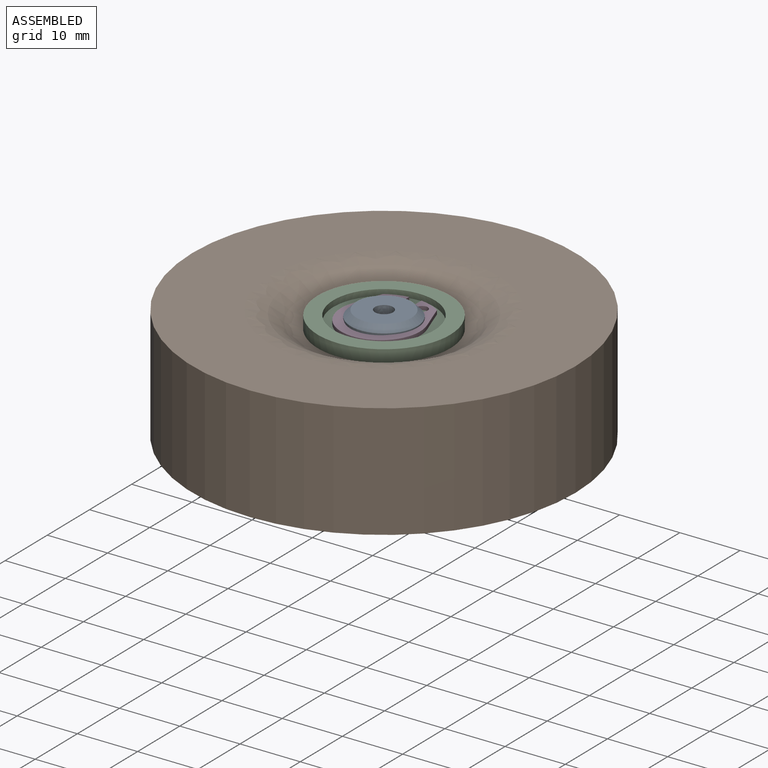
[diagram: assembled view]
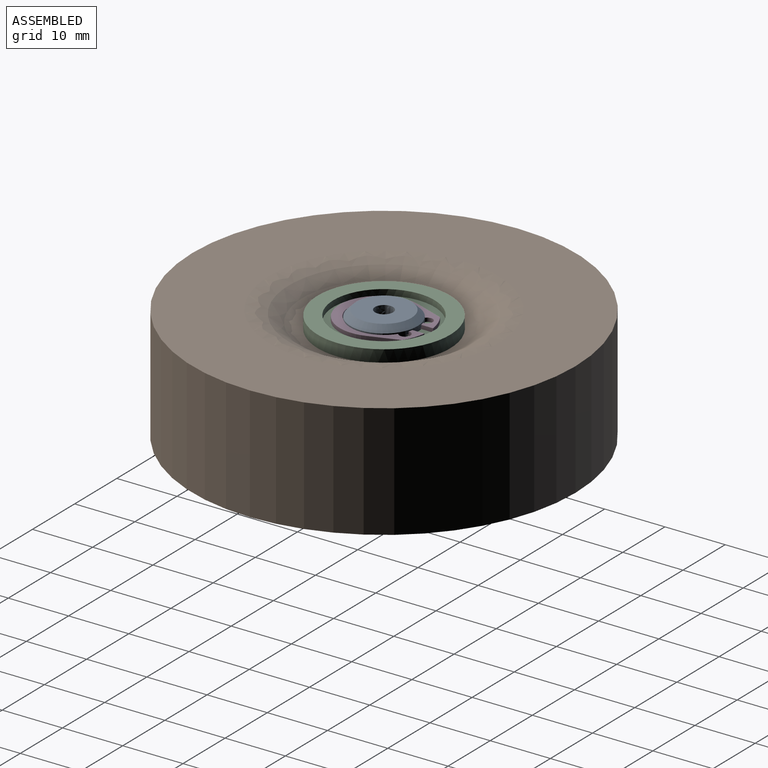
[diagram: assembled view, second angle]
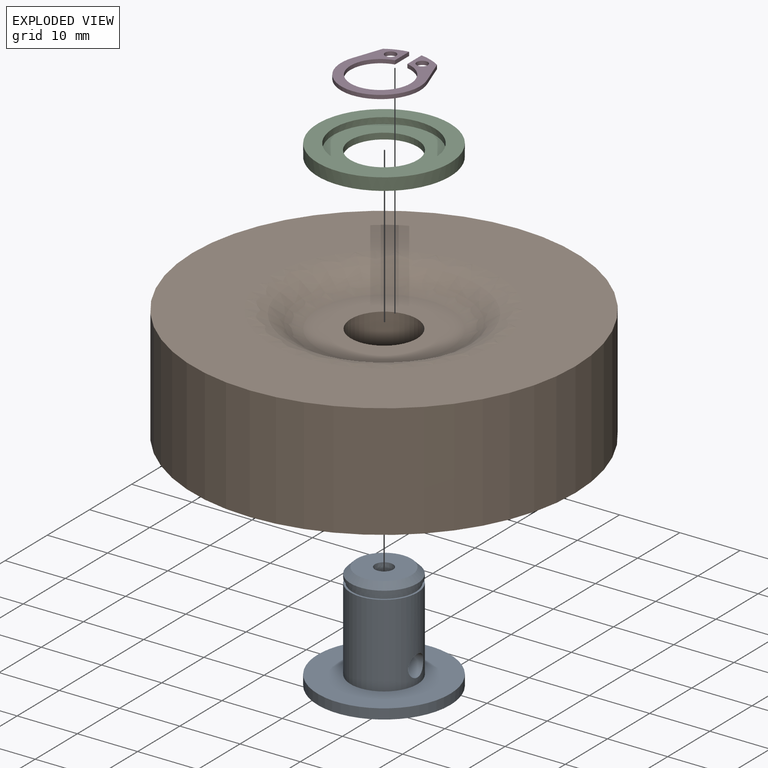
[diagram: exploded view]
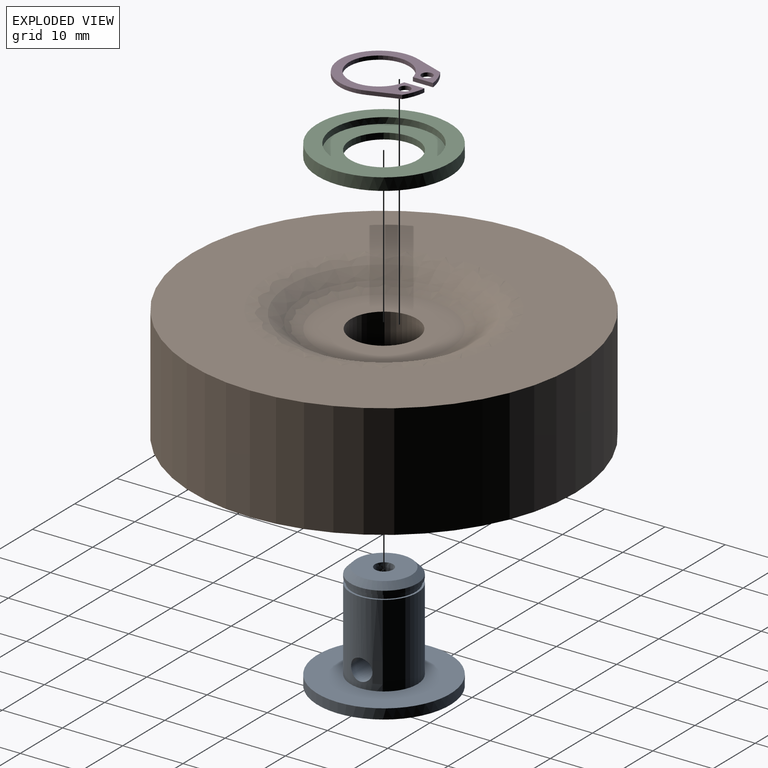
[diagram: exploded view, second angle]
ASSEMBLY  parts=4 mates=3
PART A: 17 faces, bbox 22x22x19.3 mm
  f0: revolved ~11.11x11.11mm, area 44.5mm2, adj f1,f2
  f1: revolved ~11.11x11.11mm, area 21.3mm2, adj f0,f3
  f2: plane 9.13x9.13mm, normal (0,0,1), area 58.4mm2, adj f0,f4,f7
  f3: plane 11.11x11.11mm, normal (0,0,-1), area 11mm2, adj f1,f8
  f4: revolved ~11.55x3mm, area 54.4mm2, adj f2,f7,f10
  f5: revolved ~4.2x3mm, area 19.8mm2, adj f6,f9,f10
  f6: revolved ~4.2x3mm, area 19.8mm2, adj f5,f9,f10
  f7: revolved ~11.55x3mm, area 54.4mm2, adj f2,f4,f10
  f8: revolved ~10.46x10.46mm, area 25.1mm2, adj f3,f11
  f9: plane 6.2x6.2mm, normal (0,0,-1), area 23.1mm2, adj f5,f6,f12
  f10: revolved ~11.11x3.56mm, area 108.2mm2, adj f4,f5,f6,f7,f13
  f11: plane 11.11x11.11mm, normal (0,0,1), area 11mm2, adj f8,f13
  f12: revolved ~6.2x6.2mm, area 29.7mm2, adj f9,f14
  f13: revolved ~13.74x11.11mm, area -159.3mm2, adj f10,f11,f15
  f14: plane 22x22mm, normal (0,0,-1), area 349.9mm2, adj f12,f16
  f15: plane 22x22mm, normal (0,0,1), area 283mm2, adj f13,f16
  f16: revolved ~22x22mm, area 115.8mm2, adj f14,f15
PART B: 8 faces, bbox 63.6x63.6x19.1 mm
  f0: revolved ~38x38mm, area 813.6mm2, adj f1,f7
  f1: plane 63.6x63.6mm, normal (0,0,-1), area 2042.8mm2, adj f0,f2
  f2: cylinder r=31.8mm len=63.6mm, axis (0,0,1), area 3796.3mm2, adj f1,f3
  f3: plane 63.6x63.6mm, normal (0,0,1), area 2042.8mm2, adj f2,f4
  f4: revolved ~38x38mm, area 813.6mm2, adj f3,f5
  f5: plane 22x22mm, normal (0,0,1), area 285.1mm2, adj f4,f6
  f6: cylinder r=5.5mm len=13.25mm, axis (0,0,1), area 457.9mm2, adj f5,f7
  f7: plane 22x22mm, normal (0,0,-1), area 285.1mm2, adj f0,f6
PART C: 6 faces, bbox 22x22x2 mm
  f0: plane 22x22mm, normal (0,0,-1), area 282.2mm2, adj f1,f2
  f1: revolved ~11.16x11.16mm, area 35.6mm2, adj f0,f3
  f2: revolved ~22x22mm, area 140.4mm2, adj f0,f4
  f3: plane 16.8x16.8mm, normal (0,0,1), area 123.8mm2, adj f1,f5
  f4: plane 22x22mm, normal (0,0,1), area 158.3mm2, adj f2,f5
  f5: revolved ~16.8x16.8mm, area 53.6mm2, adj f3,f4
PART D: 12 faces, bbox 13.1x14.8x0.6 mm
  f0: plane 3.35x0.64mm, normal (1,0,0), area 2.1mm2, adj f1,f7,f9,f10
  f1: revolved ~3.46x1.26mm, area 2.4mm2, adj f0,f2,f9,f10
  f2: plane 4.79x1.7mm, normal (-0.94,0.33,0), area 3.2mm2, adj f1,f3,f9,f10
  f3: revolved ~13.13x13.13mm, area 42.1mm2, adj f2,f4,f9,f10
  f4: plane 4.79x1.7mm, normal (0.94,0.33,0), area 3.2mm2, adj f3,f5,f9,f10
  f5: revolved ~3.46x1.26mm, area 2.4mm2, adj f4,f6,f9,f10
  f6: plane 3.35x0.64mm, normal (-1,0,0), area 2.1mm2, adj f5,f7,f9,f10
  f7: revolved ~9.97x9.96mm, area 38.5mm2, adj f0,f6,f9,f10
  f8: revolved ~1.83x1.83mm, area 3.6mm2, adj f9,f10
  f9: plane 14.81x13.14mm, normal (0,0,-1), area 64.8mm2, adj f0,f1,f2,f3,f4,f5,f6,f7
  f10: plane 14.81x13.14mm, normal (0,0,1), area 64.8mm2, adj f0,f1,f2,f3,f4,f5,f6,f7
  f11: revolved ~1.83x1.83mm, area 3.6mm2, adj f9,f10
PLACE A t=(8.82,61.55,55.43)mm
PLACE B t=(8.82,61.55,65.26)mm
PLACE C t=(8.82,61.55,56.21)mm
PLACE D t=(8.82,60.74,55.88)mm
MATE fastened C.f3 <-> D.f9  axis (0,0,1) through (8.82,61.55,72.9)mm
MATE fastened A.f15 <-> B.f2  axis (0,0,1) through (8.82,61.55,58.63)mm
MATE fastened B.f2 <-> C.f0  axis (0,0,1) through (8.82,61.55,71.88)mm
